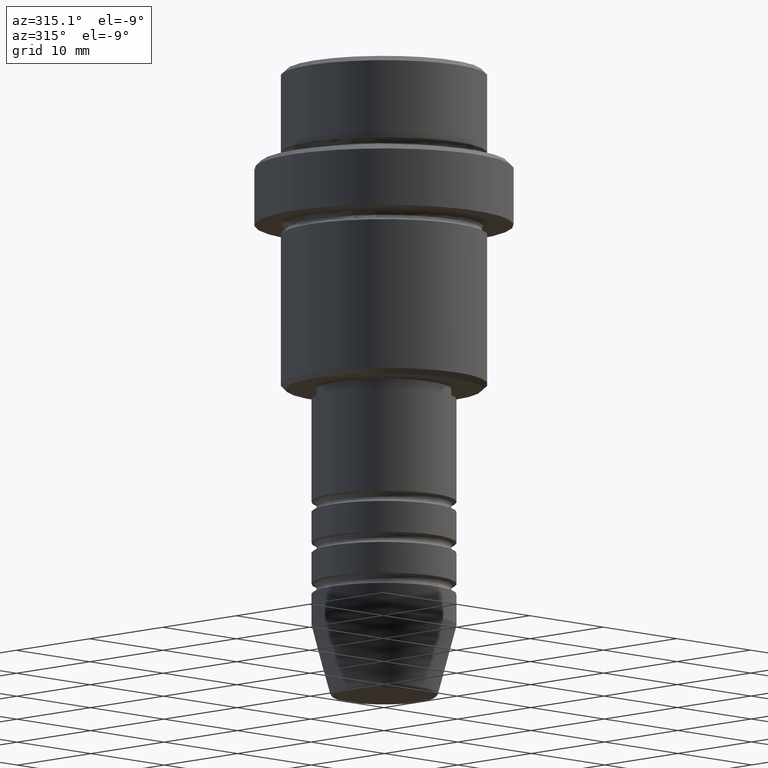
[diagram: clean part render]
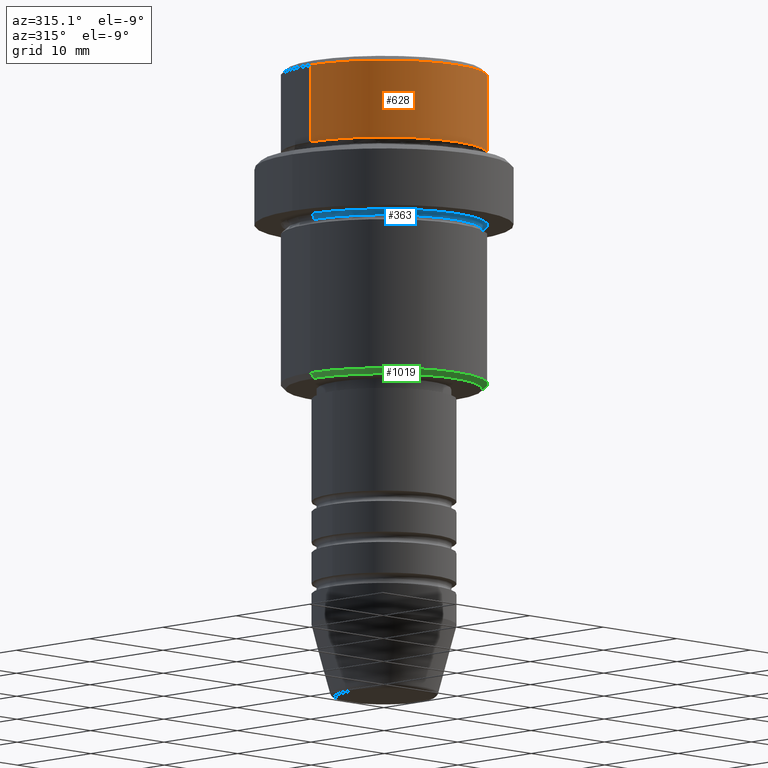
[diagram: same view with three faces highlighted in distinct colors, each labeled with its STEP entity id]
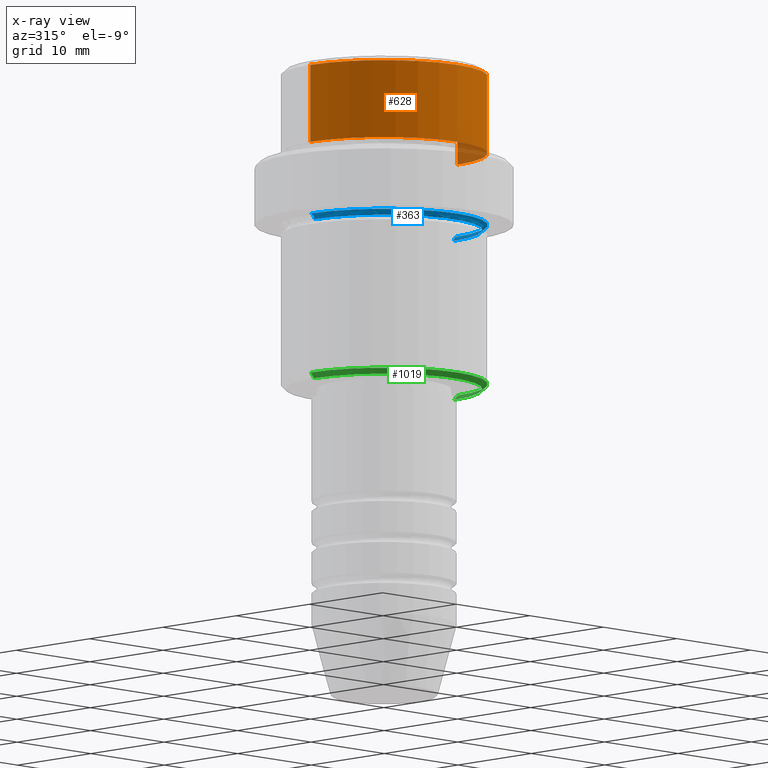
[diagram: x-ray of the same camera — body ghosted, the three highlighted faces saturated]
A machine part, auxiliary view with three faces highlighted in distinct colors.
The next image is the same camera in x-ray (body ghosted, the three faces saturated) — at least one of them is partly hidden behind the body in this view.
Their STEP definitions:

[orange] entity #628 — the highlighted cylindrical surface (partial cylindrical patch) has radius 10 mm, axis along (-0, -0, 1).
#28 = VERTEX_POINT ( 'NONE', #265 ) ;
#38 = CARTESIAN_POINT ( 'NONE',  ( 0.000000000000000000, 0.000000000000000000, 0.000000000000000000 ) ) ;
#58 = VERTEX_POINT ( 'NONE', #272 ) ;
#110 = LINE ( 'NONE', #1291, #1393 ) ;
#118 = CIRCLE ( 'NONE', #713, 9.999999999999998224 ) ;
#189 = LINE ( 'NONE', #1381, #1132 ) ;
#196 = EDGE_CURVE ( 'NONE', #58, #1406, #118, .T. ) ;
#237 = CYLINDRICAL_SURFACE ( 'NONE', #823, 9.999999999999998224 ) ;
#240 = VERTEX_POINT ( 'NONE', #889 ) ;
#265 = CARTESIAN_POINT ( 'NONE',  ( 9.999999999999998224, 0.000000000000000000, -7.999999999999998224 ) ) ;
#266 = DIRECTION ( 'NONE',  ( -0.000000000000000000, -0.000000000000000000, 1.000000000000000000 ) ) ;
#272 = CARTESIAN_POINT ( 'NONE',  ( 9.999999999999998224, 0.000000000000000000, -0.5000000000000038858 ) ) ;
#283 = EDGE_CURVE ( 'NONE', #240, #28, #1367, .T. ) ;
#341 = DIRECTION ( 'NONE',  ( 0.000000000000000000, 0.000000000000000000, -1.000000000000000000 ) ) ;
#388 = ORIENTED_EDGE ( 'NONE', *, *, #448, .T. ) ;
#410 = ORIENTED_EDGE ( 'NONE', *, *, #283, .T. ) ;
#423 = DIRECTION ( 'NONE',  ( 1.000000000000000000, 0.000000000000000000, 0.000000000000000000 ) ) ;
#448 = EDGE_CURVE ( 'NONE', #28, #58, #110, .T. ) ;
#449 = DIRECTION ( 'NONE',  ( -0.000000000000000000, -0.000000000000000000, 1.000000000000000000 ) ) ;
#628 = ADVANCED_FACE ( 'NONE', ( #763 ), #237, .T. ) ;
#713 = AXIS2_PLACEMENT_3D ( 'NONE', #765, #341, #966 ) ;
#725 = EDGE_LOOP ( 'NONE', ( #1235, #410, #388, #955 ) ) ;
#763 = FACE_OUTER_BOUND ( 'NONE', #725, .T. ) ;
#765 = CARTESIAN_POINT ( 'NONE',  ( 0.000000000000000000, 0.000000000000000000, -0.5000000000000038858 ) ) ;
#810 = EDGE_CURVE ( 'NONE', #240, #1406, #189, .T. ) ;
#823 = AXIS2_PLACEMENT_3D ( 'NONE', #38, #880, #423 ) ;
#880 = DIRECTION ( 'NONE',  ( -0.000000000000000000, -0.000000000000000000, 1.000000000000000000 ) ) ;
#889 = CARTESIAN_POINT ( 'NONE',  ( -9.999999999999998224, 1.224646799147353059E-15, -7.999999999999998224 ) ) ;
#935 = AXIS2_PLACEMENT_3D ( 'NONE', #979, #449, #1195 ) ;
#955 = ORIENTED_EDGE ( 'NONE', *, *, #196, .T. ) ;
#966 = DIRECTION ( 'NONE',  ( 1.000000000000000000, 0.000000000000000000, 0.000000000000000000 ) ) ;
#971 = DIRECTION ( 'NONE',  ( -0.000000000000000000, -0.000000000000000000, 1.000000000000000000 ) ) ;
#979 = CARTESIAN_POINT ( 'NONE',  ( 0.000000000000000000, 0.000000000000000000, -7.999999999999998224 ) ) ;
#1132 = VECTOR ( 'NONE', #266, 1000.000000000000000 ) ;
#1195 = DIRECTION ( 'NONE',  ( 1.000000000000000000, 0.000000000000000000, 0.000000000000000000 ) ) ;
#1235 = ORIENTED_EDGE ( 'NONE', *, *, #810, .F. ) ;
#1242 = CARTESIAN_POINT ( 'NONE',  ( -9.999999999999998224, 1.224646799147353059E-15, -0.5000000000000038858 ) ) ;
#1291 = CARTESIAN_POINT ( 'NONE',  ( 9.999999999999998224, 0.000000000000000000, 0.000000000000000000 ) ) ;
#1367 = CIRCLE ( 'NONE', #935, 9.999999999999998224 ) ;
#1381 = CARTESIAN_POINT ( 'NONE',  ( -9.999999999999998224, 1.224646799147353059E-15, 0.000000000000000000 ) ) ;
#1393 = VECTOR ( 'NONE', #971, 1000.000000000000000 ) ;
#1406 = VERTEX_POINT ( 'NONE', #1242 ) ;

[blue] entity #363 — the highlighted toroidal blend (fillet) surface has major radius 10 mm and minor (blend) radius 0.5 mm.
#20 = VERTEX_POINT ( 'NONE', #698 ) ;
#40 = DIRECTION ( 'NONE',  ( -1.000000000000000000, 0.000000000000000000, 0.000000000000000000 ) ) ;
#90 = VERTEX_POINT ( 'NONE', #378 ) ;
#152 = EDGE_LOOP ( 'NONE', ( #1135, #649, #1042, #535 ) ) ;
#188 = VERTEX_POINT ( 'NONE', #1049 ) ;
#226 = EDGE_CURVE ( 'NONE', #188, #1130, #230, .T. ) ;
#230 = CIRCLE ( 'NONE', #1180, 0.5000000000000004441 ) ;
#232 = DIRECTION ( 'NONE',  ( -1.000000000000000000, 0.000000000000000000, 0.000000000000000000 ) ) ;
#307 = DIRECTION ( 'NONE',  ( -0.000000000000000000, -0.000000000000000000, 1.000000000000000000 ) ) ;
#326 = CIRCLE ( 'NONE', #789, 9.499999999999992895 ) ;
#363 = ADVANCED_FACE ( 'NONE', ( #375 ), #1204, .F. ) ;
#375 = FACE_OUTER_BOUND ( 'NONE', #152, .T. ) ;
#378 = CARTESIAN_POINT ( 'NONE',  ( -9.499999999999992895, 0.000000000000000000, -15.50000000000000000 ) ) ;
#393 = CIRCLE ( 'NONE', #1252, 0.5000000000000004441 ) ;
#429 = DIRECTION ( 'NONE',  ( -1.000000000000000000, 0.000000000000000000, 0.000000000000000000 ) ) ;
#508 = CIRCLE ( 'NONE', #675, 9.999999999999992895 ) ;
#535 = ORIENTED_EDGE ( 'NONE', *, *, #804, .F. ) ;
#649 = ORIENTED_EDGE ( 'NONE', *, *, #226, .T. ) ;
#664 = DIRECTION ( 'NONE',  ( -1.224646799147353207E-16, 1.000000000000000000, 0.000000000000000000 ) ) ;
#675 = AXIS2_PLACEMENT_3D ( 'NONE', #837, #307, #429 ) ;
#698 = CARTESIAN_POINT ( 'NONE',  ( -9.999999999999992895, 0.000000000000000000, -15.00000000000000000 ) ) ;
#789 = AXIS2_PLACEMENT_3D ( 'NONE', #798, #890, #232 ) ;
#798 = CARTESIAN_POINT ( 'NONE',  ( 0.000000000000000000, 0.000000000000000000, -15.50000000000000000 ) ) ;
#804 = EDGE_CURVE ( 'NONE', #90, #20, #393, .T. ) ;
#837 = CARTESIAN_POINT ( 'NONE',  ( 0.000000000000000000, 0.000000000000000000, -15.00000000000000000 ) ) ;
#882 = CARTESIAN_POINT ( 'NONE',  ( 9.999999999999992895, 1.224646799147352468E-15, -15.50000000000000000 ) ) ;
#890 = DIRECTION ( 'NONE',  ( 0.000000000000000000, 0.000000000000000000, -1.000000000000000000 ) ) ;
#921 = EDGE_CURVE ( 'NONE', #188, #90, #326, .T. ) ;
#951 = DIRECTION ( 'NONE',  ( -0.000000000000000000, -1.000000000000000000, -0.000000000000000000 ) ) ;
#1014 = DIRECTION ( 'NONE',  ( 0.000000000000000000, 0.000000000000000000, -1.000000000000000000 ) ) ;
#1033 = DIRECTION ( 'NONE',  ( 0.000000000000000000, 0.000000000000000000, -1.000000000000000000 ) ) ;
#1040 = EDGE_CURVE ( 'NONE', #20, #1130, #508, .T. ) ;
#1042 = ORIENTED_EDGE ( 'NONE', *, *, #1040, .F. ) ;
#1049 = CARTESIAN_POINT ( 'NONE',  ( 9.499999999999992895, 1.194030629168668681E-15, -15.50000000000000000 ) ) ;
#1110 = CARTESIAN_POINT ( 'NONE',  ( 0.000000000000000000, 0.000000000000000000, -15.50000000000000000 ) ) ;
#1130 = VERTEX_POINT ( 'NONE', #1157 ) ;
#1135 = ORIENTED_EDGE ( 'NONE', *, *, #921, .F. ) ;
#1143 = CARTESIAN_POINT ( 'NONE',  ( -9.999999999999992895, 0.000000000000000000, -15.50000000000000000 ) ) ;
#1157 = CARTESIAN_POINT ( 'NONE',  ( 9.999999999999992895, 1.224646799147352468E-15, -15.00000000000000000 ) ) ;
#1180 = AXIS2_PLACEMENT_3D ( 'NONE', #882, #664, #1303 ) ;
#1204 = TOROIDAL_SURFACE ( 'NONE', #1279, 9.999999999999992895, 0.5000000000000000000 ) ;
#1252 = AXIS2_PLACEMENT_3D ( 'NONE', #1143, #951, #1033 ) ;
#1279 = AXIS2_PLACEMENT_3D ( 'NONE', #1110, #1014, #40 ) ;
#1303 = DIRECTION ( 'NONE',  ( -1.000000000000000000, -1.224646799147353454E-16, 0.000000000000000000 ) ) ;

[green] entity #1019 — the highlighted conical surface has half-angle 45 deg.
#18 = DIRECTION ( 'NONE',  ( 0.000000000000000000, 0.000000000000000000, -1.000000000000000000 ) ) ;
#35 = CARTESIAN_POINT ( 'NONE',  ( -9.999999999999998224, 1.224646799147353059E-15, -30.49999999999998934 ) ) ;
#92 = VERTEX_POINT ( 'NONE', #35 ) ;
#98 = CIRCLE ( 'NONE', #276, 9.999999999999998224 ) ;
#151 = DIRECTION ( 'NONE',  ( -0.000000000000000000, -0.000000000000000000, 1.000000000000000000 ) ) ;
#221 = CARTESIAN_POINT ( 'NONE',  ( 0.000000000000000000, 0.000000000000000000, -31.00000000000000000 ) ) ;
#231 = VECTOR ( 'NONE', #334, 999.9999999999998863 ) ;
#276 = AXIS2_PLACEMENT_3D ( 'NONE', #1117, #151, #950 ) ;
#286 = DIRECTION ( 'NONE',  ( -0.000000000000000000, -0.000000000000000000, 1.000000000000000000 ) ) ;
#323 = VERTEX_POINT ( 'NONE', #1221 ) ;
#334 = DIRECTION ( 'NONE',  ( -0.7071067811865574537, 8.659560562355054885E-17, 0.7071067811865376918 ) ) ;
#366 = CARTESIAN_POINT ( 'NONE',  ( 9.999999999999998224, 0.000000000000000000, -30.49999999999998934 ) ) ;
#396 = EDGE_CURVE ( 'NONE', #727, #884, #1355, .T. ) ;
#436 = CARTESIAN_POINT ( 'NONE',  ( -9.999999999999998224, 1.224646799147353059E-15, -30.49999999999998934 ) ) ;
#450 = EDGE_CURVE ( 'NONE', #727, #323, #1004, .T. ) ;
#629 = ORIENTED_EDGE ( 'NONE', *, *, #755, .F. ) ;
#631 = ORIENTED_EDGE ( 'NONE', *, *, #396, .T. ) ;
#683 = DIRECTION ( 'NONE',  ( 0.7071067811865574537, 0.000000000000000000, 0.7071067811865376918 ) ) ;
#684 = CARTESIAN_POINT ( 'NONE',  ( 9.499999999999973355, 0.000000000000000000, -31.00000000000000000 ) ) ;
#695 = AXIS2_PLACEMENT_3D ( 'NONE', #221, #18, #1075 ) ;
#696 = FACE_OUTER_BOUND ( 'NONE', #770, .T. ) ;
#717 = CARTESIAN_POINT ( 'NONE',  ( 9.999999999999998224, 0.000000000000000000, -30.49999999999998934 ) ) ;
#727 = VERTEX_POINT ( 'NONE', #684 ) ;
#731 = EDGE_CURVE ( 'NONE', #92, #884, #98, .T. ) ;
#740 = AXIS2_PLACEMENT_3D ( 'NONE', #1047, #286, #1140 ) ;
#755 = EDGE_CURVE ( 'NONE', #323, #92, #1311, .T. ) ;
#770 = EDGE_LOOP ( 'NONE', ( #629, #1165, #631, #1362 ) ) ;
#884 = VERTEX_POINT ( 'NONE', #717 ) ;
#950 = DIRECTION ( 'NONE',  ( -1.000000000000000000, 0.000000000000000000, 0.000000000000000000 ) ) ;
#1004 = CIRCLE ( 'NONE', #695, 9.499999999999973355 ) ;
#1019 = ADVANCED_FACE ( 'NONE', ( #696 ), #1298, .T. ) ;
#1047 = CARTESIAN_POINT ( 'NONE',  ( 0.000000000000000000, 0.000000000000000000, -30.49999999999998934 ) ) ;
#1068 = VECTOR ( 'NONE', #683, 999.9999999999998863 ) ;
#1075 = DIRECTION ( 'NONE',  ( -1.000000000000000000, 0.000000000000000000, 0.000000000000000000 ) ) ;
#1117 = CARTESIAN_POINT ( 'NONE',  ( 0.000000000000000000, 0.000000000000000000, -30.49999999999998934 ) ) ;
#1140 = DIRECTION ( 'NONE',  ( 1.000000000000000000, 0.000000000000000000, 0.000000000000000000 ) ) ;
#1165 = ORIENTED_EDGE ( 'NONE', *, *, #450, .F. ) ;
#1221 = CARTESIAN_POINT ( 'NONE',  ( -9.499999999999973355, 1.194030629168667695E-15, -31.00000000000000000 ) ) ;
#1298 = CONICAL_SURFACE ( 'NONE', #740, 9.999999999999998224, 0.7853981633974621568 ) ;
#1311 = LINE ( 'NONE', #436, #231 ) ;
#1355 = LINE ( 'NONE', #366, #1068 ) ;
#1362 = ORIENTED_EDGE ( 'NONE', *, *, #731, .F. ) ;